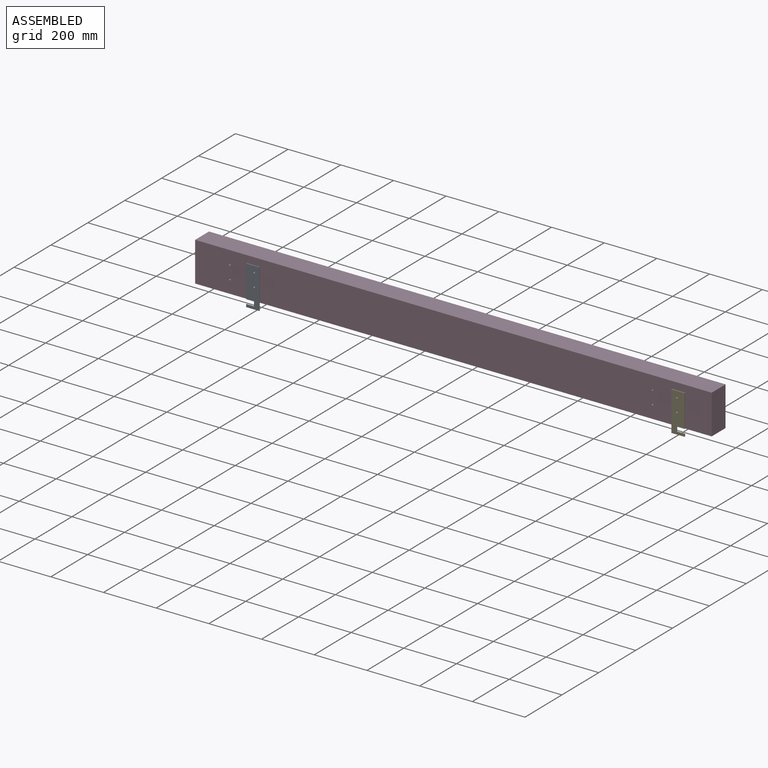
[diagram: assembled view]
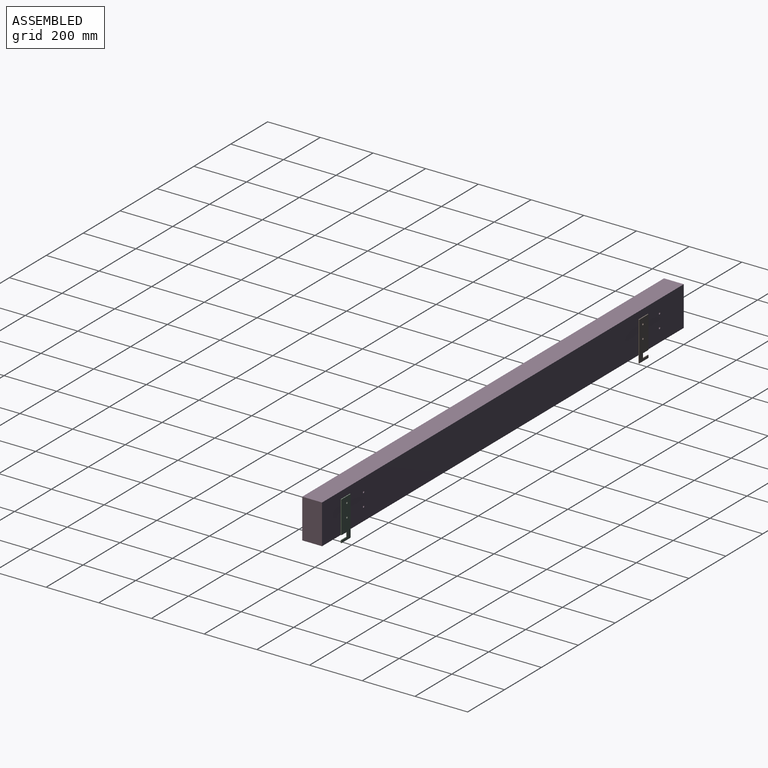
[diagram: assembled view, second angle]
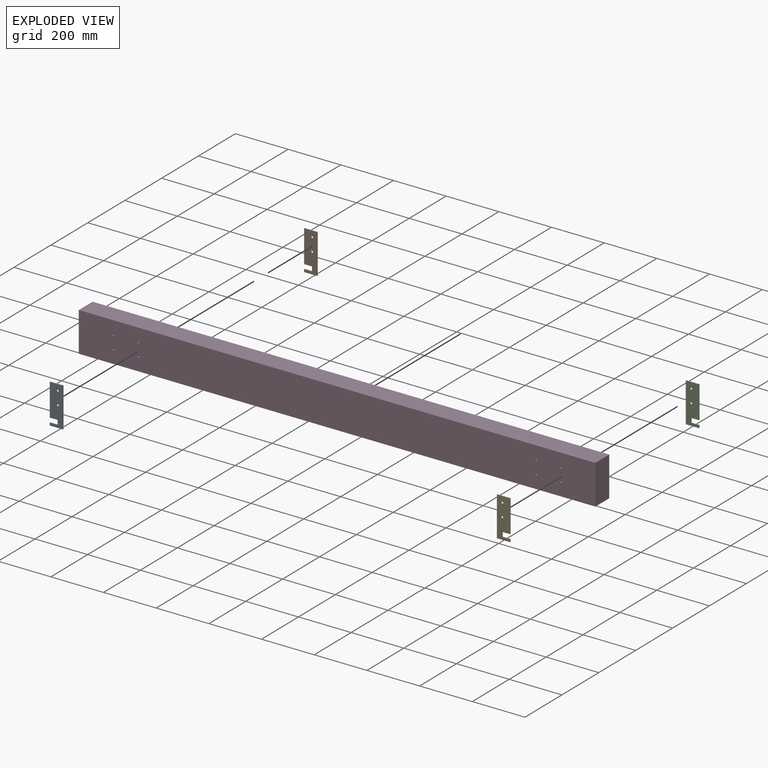
[diagram: exploded view]
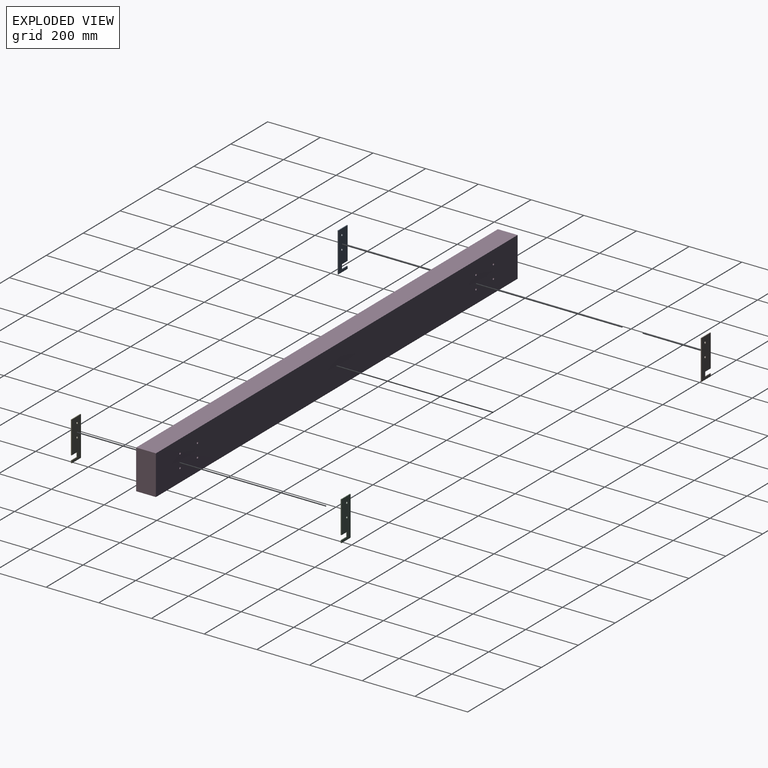
[diagram: exploded view, second angle]
ASSEMBLY  parts=5 mates=4
PART A: 12 faces, bbox 3x50x150 mm
  f0: plane 10x3mm, normal (0,1,0), area 30mm2, adj f1,f8,f10,f11
  f1: plane 30x3mm, normal (0,0,1), area 90mm2, adj f0,f2,f10,f11
  f2: plane 17.3x3mm, normal (0,1,0), area 51.9mm2, adj f1,f3,f10,f11
  f3: plane 30x3mm, normal (0,0,-1), area 90mm2, adj f2,f4,f10,f11
  f4: plane 122.7x3mm, normal (0,1,0), area 368.1mm2, adj f3,f5,f10,f11
  f5: plane 50x3mm, normal (0,0,1), area 150mm2, adj f4,f6,f10,f11
  f6: plane 150x3mm, normal (0,-1,0), area 450mm2, adj f5,f8,f10,f11
  f7: cylinder r=3.75mm len=7.5mm, axis (-1,0,0), area 70.7mm2, adj f10,f11
  f8: plane 50x3mm, normal (0,0,-1), area 150mm2, adj f0,f6,f10,f11
  f9: cylinder r=3.75mm len=7.5mm, axis (-1,0,0), area 70.7mm2, adj f10,f11
  f10: plane 150x50mm, normal (1,0,0), area 6892.6mm2, adj f0,f1,f2,f3,f4,f5,f6,f7
  f11: plane 150x50mm, normal (-1,0,0), area 6892.6mm2, adj f0,f1,f2,f3,f4,f5,f6,f7
PART B: same geometry as A
PART C: same geometry as A
PART D: 14 faces, bbox 1961x75x150 mm
  f0: plane 150x75mm, normal (-1,0,0), area 11250mm2, adj f1,f10,f12,f13
  f1: plane 1961x75mm, normal (0,0,-1), area 147075mm2, adj f0,f2,f12,f13
  f2: plane 150x75mm, normal (1,0,0), area 11250mm2, adj f1,f10,f12,f13
  f3: cylinder r=3.75mm len=75mm, axis (0,1,0), area 1767.1mm2, adj f12,f13
  f4: cylinder r=3.75mm len=75mm, axis (0,1,0), area 1767.1mm2, adj f12,f13
  f5: cylinder r=3.75mm len=75mm, axis (0,1,0), area 1767.1mm2, adj f12,f13
  f6: cylinder r=3.75mm len=75mm, axis (0,1,0), area 1767.1mm2, adj f12,f13
  f7: cylinder r=3.75mm len=75mm, axis (0,1,0), area 1767.1mm2, adj f12,f13
  f8: cylinder r=3.75mm len=75mm, axis (0,1,0), area 1767.1mm2, adj f12,f13
  f9: cylinder r=3.75mm len=75mm, axis (0,1,0), area 1767.1mm2, adj f12,f13
  f10: plane 1961x75mm, normal (0,0,1), area 147075mm2, adj f0,f2,f12,f13
  f11: cylinder r=3.75mm len=75mm, axis (0,1,0), area 1767.1mm2, adj f12,f13
  f12: plane 1961x150mm, normal (0,-1,0), area 293796.6mm2, adj f0,f1,f2,f3,f4,f5,f6,f7
  f13: plane 1961x150mm, normal (0,1,0), area 293796.6mm2, adj f0,f1,f2,f3,f4,f5,f6,f7
PART E: same geometry as A
PLACE A rot(axis=(0,0,1),90deg) t=(245.5,-78,122.7)mm
PLACE B rot(axis=(0,0,1),90deg) t=(245.5,0,122.7)mm
PLACE C rot(axis=(0,0,-1),90deg) t=(1810,3,122.7)mm
PLACE D at identity fixed
PLACE E rot(axis=(0,0,-1),90deg) t=(1810,-75,122.7)mm
MATE fastened C.f7 <-> D.f7  axis (0,-1,0) through (1830,0,100)mm
MATE fastened B.f7 <-> D.f3  axis (0,-1,0) through (225.5,0,100)mm
MATE fastened A.f7 <-> D.f3  axis (0,1,0) through (225.5,-75,100)mm
MATE fastened E.f7 <-> D.f7  axis (0,1,0) through (1830,-75,100)mm
